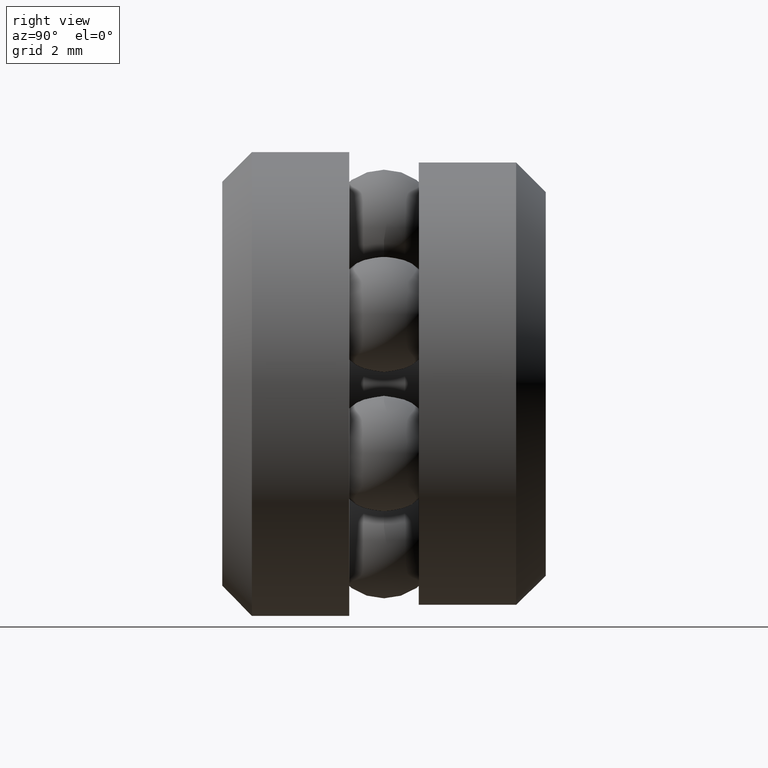
[diagram: clean part render]
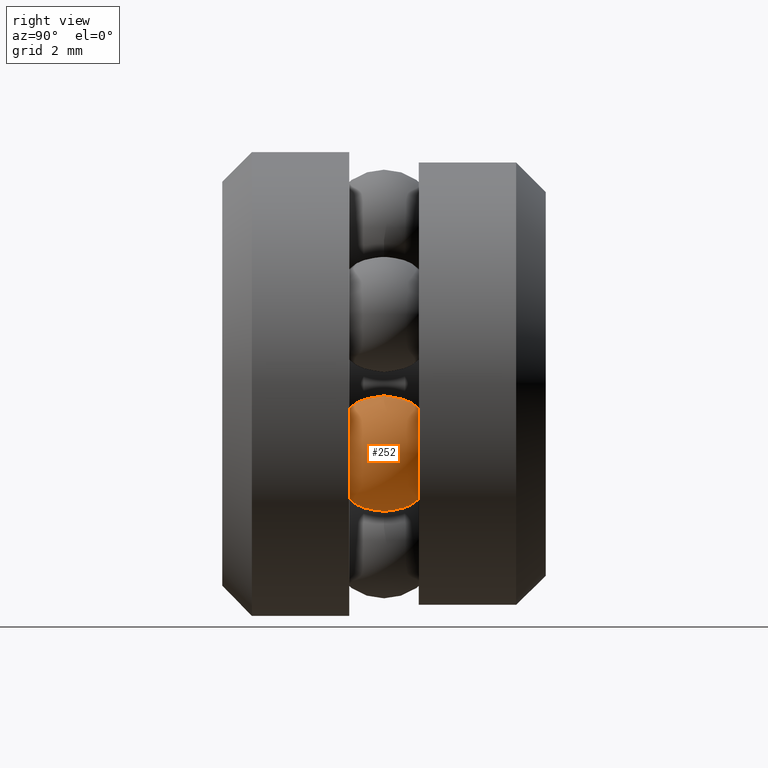
[diagram: same view with one face highlighted and labeled with its STEP entity id]
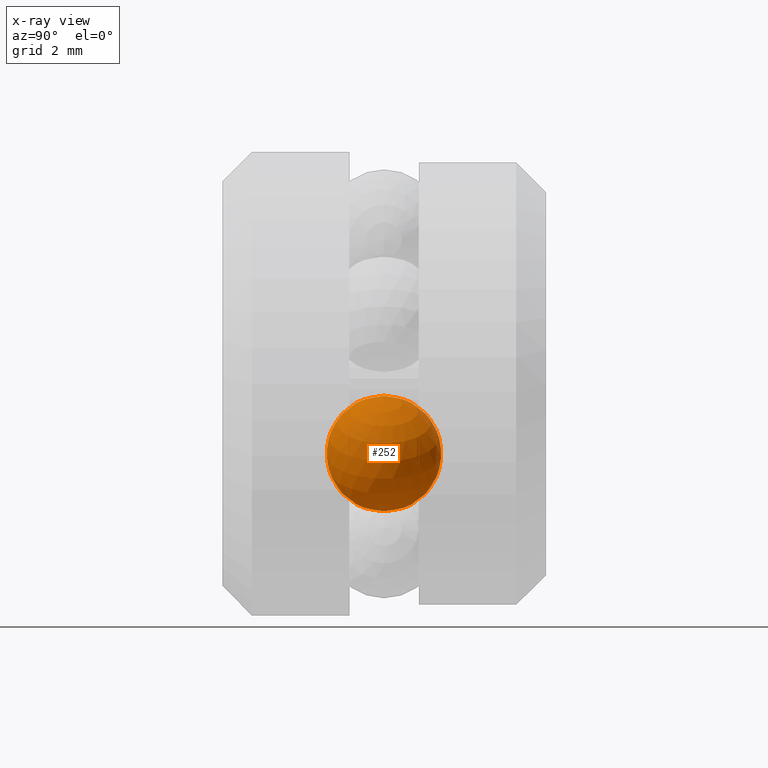
[diagram: x-ray of the same camera — body ghosted, the highlighted face saturated]
A machine part, right view. The second image highlights one B-rep face of the part: STEP entity #252.
The next image is the same camera in x-ray: the body ghosted, the highlighted face saturated — about 0% of this face is hidden behind the body in this view.
In plain terms, the highlighted spherical surface has radius 0.9906 mm.
Its self-contained STEP definition (entity closure, byte-faithful):
#93 = DIRECTION ( 'NONE',  ( 0.4338837391175651700, -0.0000000000000000000, 0.9009688679024158200 ) ) ;
#252 = ADVANCED_FACE ( 'NONE', ( ), #552, .T. ) ;
#274 = CARTESIAN_POINT ( 'NONE',  ( 0.09752987995043649300, 0.1089999999999999900, -0.04696791475947643300 ) ) ;
#348 = DIRECTION ( 'NONE',  ( -0.9009688679024158200, 0.0000000000000000000, 0.4338837391175651700 ) ) ;
#435 = AXIS2_PLACEMENT_3D ( 'NONE', #274, #93, #348 ) ;
#552 = SPHERICAL_SURFACE ( 'NONE', #435, 0.03900000000000000000 ) ;